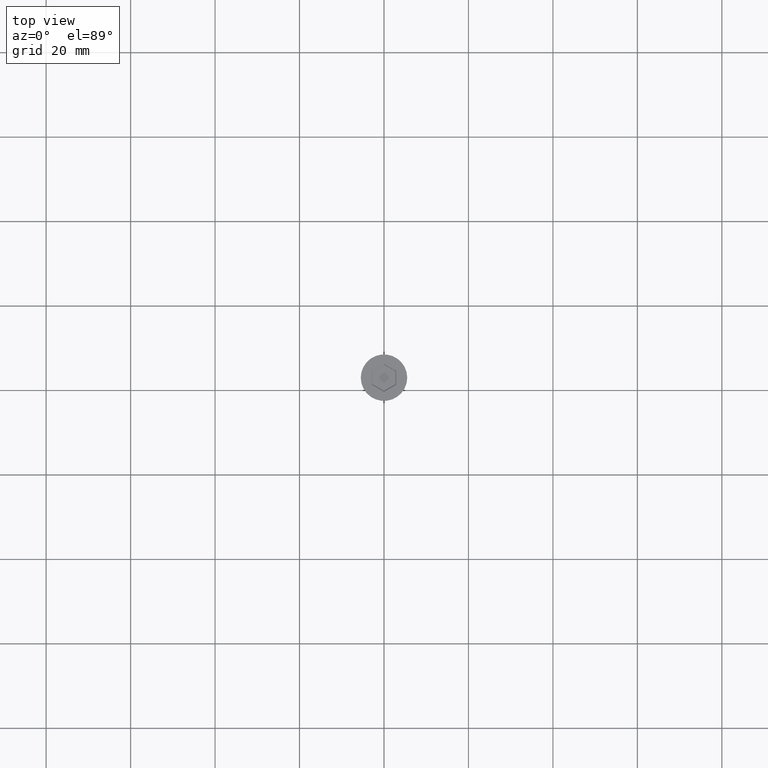
[diagram: clean part render]
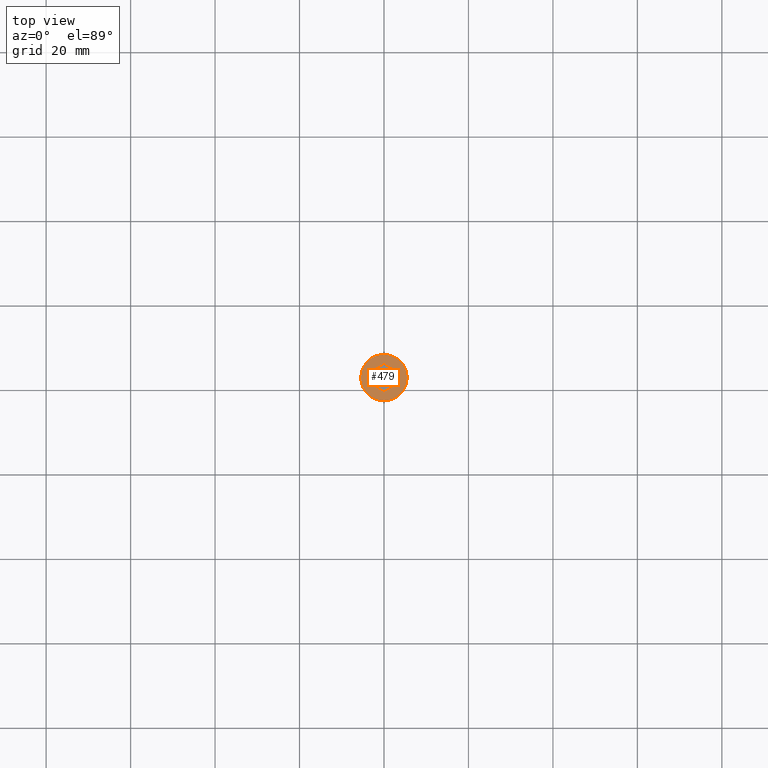
[diagram: same view with one face highlighted and labeled with its STEP entity id]
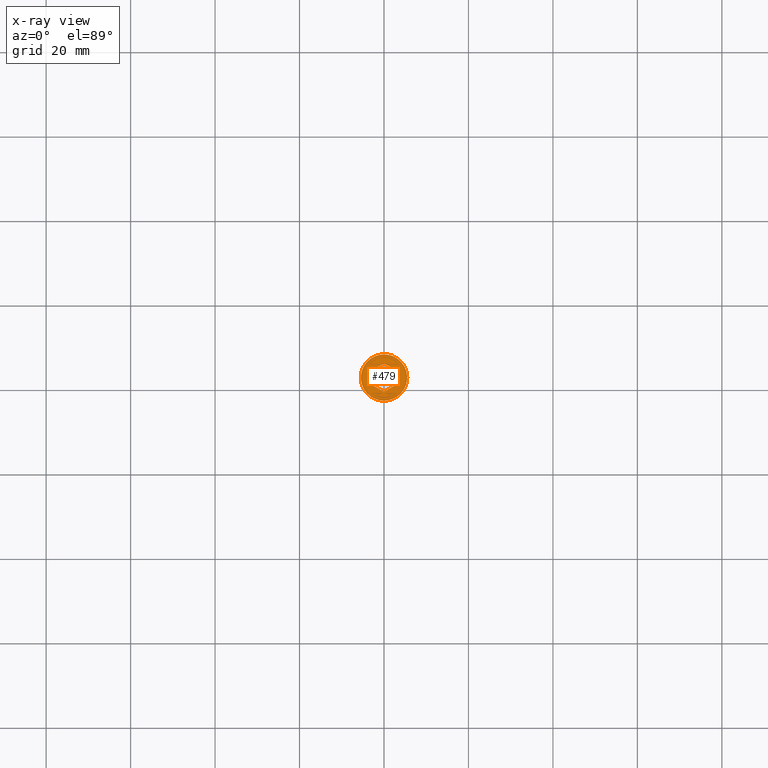
[diagram: x-ray of the same camera — body ghosted, the highlighted face saturated]
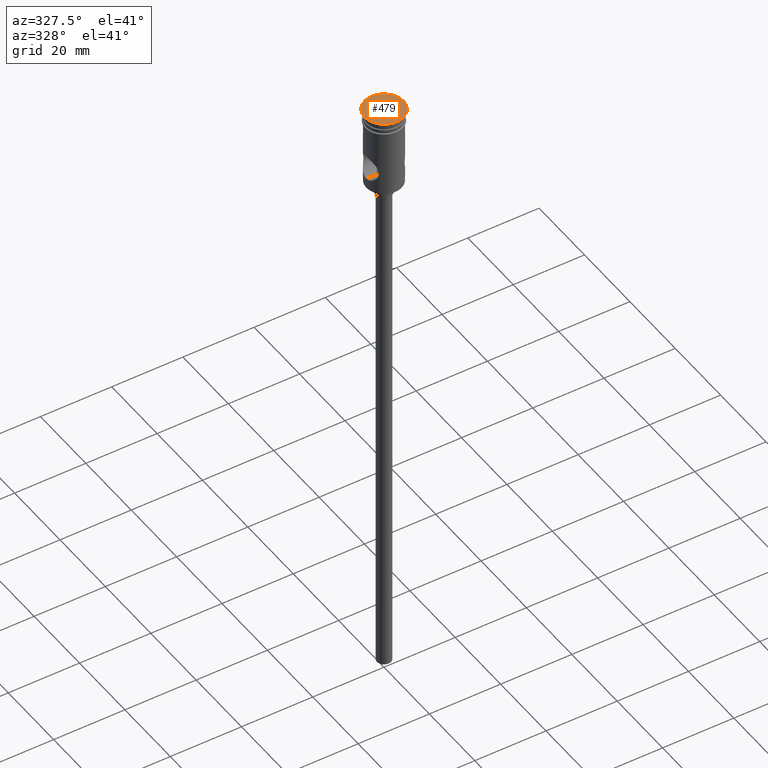
[diagram: same view with one face highlighted and labeled with its STEP entity id]
A machine part, top view. The second image highlights one B-rep face of the part: STEP entity #479.
The next image is the same camera in x-ray: the body ghosted, the highlighted face saturated — about 0% of this face is hidden behind the body in this view.
A second angle (auxiliary view) of the same face is appended — the face is thin or edge-on in the first view.
In plain terms, the highlighted planar face has unit normal (0, -0, 1).
Its self-contained STEP definition (entity closure, byte-faithful):
#87 = DIRECTION ( 'NONE',  ( 0.000000000000000000, -0.000000000000000000, 1.000000000000000000 ) ) ;
#89 = CIRCLE ( 'NONE', #894, 5.500000000000000000 ) ;
#101 = ORIENTED_EDGE ( 'NONE', *, *, #522, .T. ) ;
#129 = CARTESIAN_POINT ( 'NONE',  ( -0.09999999999999764633, 3.290896534380861382, 0.000000000000000000 ) ) ;
#136 = LINE ( 'NONE', #1032, #281 ) ;
#176 = CARTESIAN_POINT ( 'NONE',  ( -9.683804684061200344E-16, 3.348631561299821868, 0.000000000000000000 ) ) ;
#178 = LINE ( 'NONE', #1106, #258 ) ;
#204 = FACE_OUTER_BOUND ( 'NONE', #235, .T. ) ;
#226 = ORIENTED_EDGE ( 'NONE', *, *, #1383, .T. ) ;
#229 = ORIENTED_EDGE ( 'NONE', *, *, #811, .T. ) ;
#235 = EDGE_LOOP ( 'NONE', ( #705, #101 ) ) ;
#244 = DIRECTION ( 'NONE',  ( -0.8660254037844387076, -0.4999999999999998890, 0.000000000000000000 ) ) ;
#255 = VECTOR ( 'NONE', #950, 1000.000000000000000 ) ;
#258 = VECTOR ( 'NONE', #983, 1000.000000000000000 ) ;
#281 = VECTOR ( 'NONE', #1247, 1000.000000000000114 ) ;
#301 = DIRECTION ( 'NONE',  ( -0.000000000000000000, -0.000000000000000000, 1.000000000000000000 ) ) ;
#305 = AXIS2_PLACEMENT_3D ( 'NONE', #427, #840, #311 ) ;
#311 = DIRECTION ( 'NONE',  ( 1.000000000000000000, 0.000000000000000000, 0.000000000000000000 ) ) ;
#322 = FACE_BOUND ( 'NONE', #576, .T. ) ;
#325 = AXIS2_PLACEMENT_3D ( 'NONE', #343, #87, #1425 ) ;
#334 = DIRECTION ( 'NONE',  ( 0.8660254037844387076, -0.4999999999999998335, 0.000000000000000000 ) ) ;
#343 = CARTESIAN_POINT ( 'NONE',  ( 0.000000000000000000, 0.000000000000000000, 0.000000000000000000 ) ) ;
#384 = CARTESIAN_POINT ( 'NONE',  ( -2.899999999999994138, 1.558845726811988852, 0.000000000000000000 ) ) ;
#390 = CARTESIAN_POINT ( 'NONE',  ( -5.500000000000000000, 6.735557395310442023E-16, 0.000000000000000000 ) ) ;
#404 = VERTEX_POINT ( 'NONE', #390 ) ;
#427 = CARTESIAN_POINT ( 'NONE',  ( 0.000000000000000000, 0.000000000000000000, 0.000000000000000000 ) ) ;
#479 = ADVANCED_FACE ( 'NONE', ( #322, #204 ), #643, .T. ) ;
#484 = ORIENTED_EDGE ( 'NONE', *, *, #1376, .T. ) ;
#500 = VERTEX_POINT ( 'NONE', #1015 ) ;
#515 = LINE ( 'NONE', #384, #255 ) ;
#517 = VECTOR ( 'NONE', #244, 1000.000000000000000 ) ;
#522 = EDGE_CURVE ( 'NONE', #404, #1183, #596, .T. ) ;
#576 = EDGE_LOOP ( 'NONE', ( #226, #973, #484, #229, #1384, #1233 ) ) ;
#592 = VERTEX_POINT ( 'NONE', #1264 ) ;
#596 = CIRCLE ( 'NONE', #305, 5.500000000000000000 ) ;
#643 = PLANE ( 'NONE',  #325 ) ;
#697 = LINE ( 'NONE', #1140, #517 ) ;
#705 = ORIENTED_EDGE ( 'NONE', *, *, #1337, .T. ) ;
#712 = EDGE_CURVE ( 'NONE', #592, #893, #697, .T. ) ;
#770 = VECTOR ( 'NONE', #819, 1000.000000000000000 ) ;
#777 = VERTEX_POINT ( 'NONE', #1314 ) ;
#811 = EDGE_CURVE ( 'NONE', #929, #777, #978, .T. ) ;
#819 = DIRECTION ( 'NONE',  ( 0.8660254037844387076, 0.4999999999999998890, 0.000000000000000000 ) ) ;
#840 = DIRECTION ( 'NONE',  ( -0.000000000000000000, -0.000000000000000000, 1.000000000000000000 ) ) ;
#891 = LINE ( 'NONE', #129, #770 ) ;
#893 = VERTEX_POINT ( 'NONE', #1259 ) ;
#894 = AXIS2_PLACEMENT_3D ( 'NONE', #1394, #301, #1076 ) ;
#906 = EDGE_CURVE ( 'NONE', #1268, #500, #515, .T. ) ;
#929 = VERTEX_POINT ( 'NONE', #176 ) ;
#950 = DIRECTION ( 'NONE',  ( 0.000000000000000000, 1.000000000000000000, 0.000000000000000000 ) ) ;
#973 = ORIENTED_EDGE ( 'NONE', *, *, #906, .T. ) ;
#978 = LINE ( 'NONE', #1432, #1132 ) ;
#983 = DIRECTION ( 'NONE',  ( -1.391032035867740017E-16, -1.000000000000000000, 0.000000000000000000 ) ) ;
#1015 = CARTESIAN_POINT ( 'NONE',  ( -2.899999999999994138, 1.674315780649911600, 0.000000000000000000 ) ) ;
#1032 = CARTESIAN_POINT ( 'NONE',  ( -2.799999999999997158, -1.732050807568871864, 0.000000000000000000 ) ) ;
#1054 = CARTESIAN_POINT ( 'NONE',  ( -2.899999999999994138, -1.674315780649910934, 0.000000000000000000 ) ) ;
#1076 = DIRECTION ( 'NONE',  ( 1.000000000000000000, 0.000000000000000000, 0.000000000000000000 ) ) ;
#1106 = CARTESIAN_POINT ( 'NONE',  ( 2.899999999999992362, -1.558845726811989296, 0.000000000000000000 ) ) ;
#1132 = VECTOR ( 'NONE', #334, 1000.000000000000000 ) ;
#1140 = CARTESIAN_POINT ( 'NONE',  ( 0.09999999999999654998, -3.290896534380861382, 0.000000000000000000 ) ) ;
#1183 = VERTEX_POINT ( 'NONE', #1188 ) ;
#1188 = CARTESIAN_POINT ( 'NONE',  ( 5.500000000000000000, 0.000000000000000000, 0.000000000000000000 ) ) ;
#1199 = EDGE_CURVE ( 'NONE', #777, #592, #178, .T. ) ;
#1233 = ORIENTED_EDGE ( 'NONE', *, *, #712, .T. ) ;
#1247 = DIRECTION ( 'NONE',  ( -0.8660254037844385966, 0.5000000000000001110, 0.000000000000000000 ) ) ;
#1259 = CARTESIAN_POINT ( 'NONE',  ( -4.552601062339046804E-16, -3.348631561299821868, 0.000000000000000000 ) ) ;
#1264 = CARTESIAN_POINT ( 'NONE',  ( 2.899999999999992362, -1.674315780649911822, 0.000000000000000000 ) ) ;
#1268 = VERTEX_POINT ( 'NONE', #1054 ) ;
#1314 = CARTESIAN_POINT ( 'NONE',  ( 2.899999999999992806, 1.674315780649911378, 0.000000000000000000 ) ) ;
#1337 = EDGE_CURVE ( 'NONE', #1183, #404, #89, .T. ) ;
#1376 = EDGE_CURVE ( 'NONE', #500, #929, #891, .T. ) ;
#1383 = EDGE_CURVE ( 'NONE', #893, #1268, #136, .T. ) ;
#1384 = ORIENTED_EDGE ( 'NONE', *, *, #1199, .T. ) ;
#1394 = CARTESIAN_POINT ( 'NONE',  ( 0.000000000000000000, 0.000000000000000000, 0.000000000000000000 ) ) ;
#1425 = DIRECTION ( 'NONE',  ( 1.000000000000000000, 0.000000000000000000, 0.000000000000000000 ) ) ;
#1432 = CARTESIAN_POINT ( 'NONE',  ( 2.799999999999996270, 1.732050807568872086, 0.000000000000000000 ) ) ;